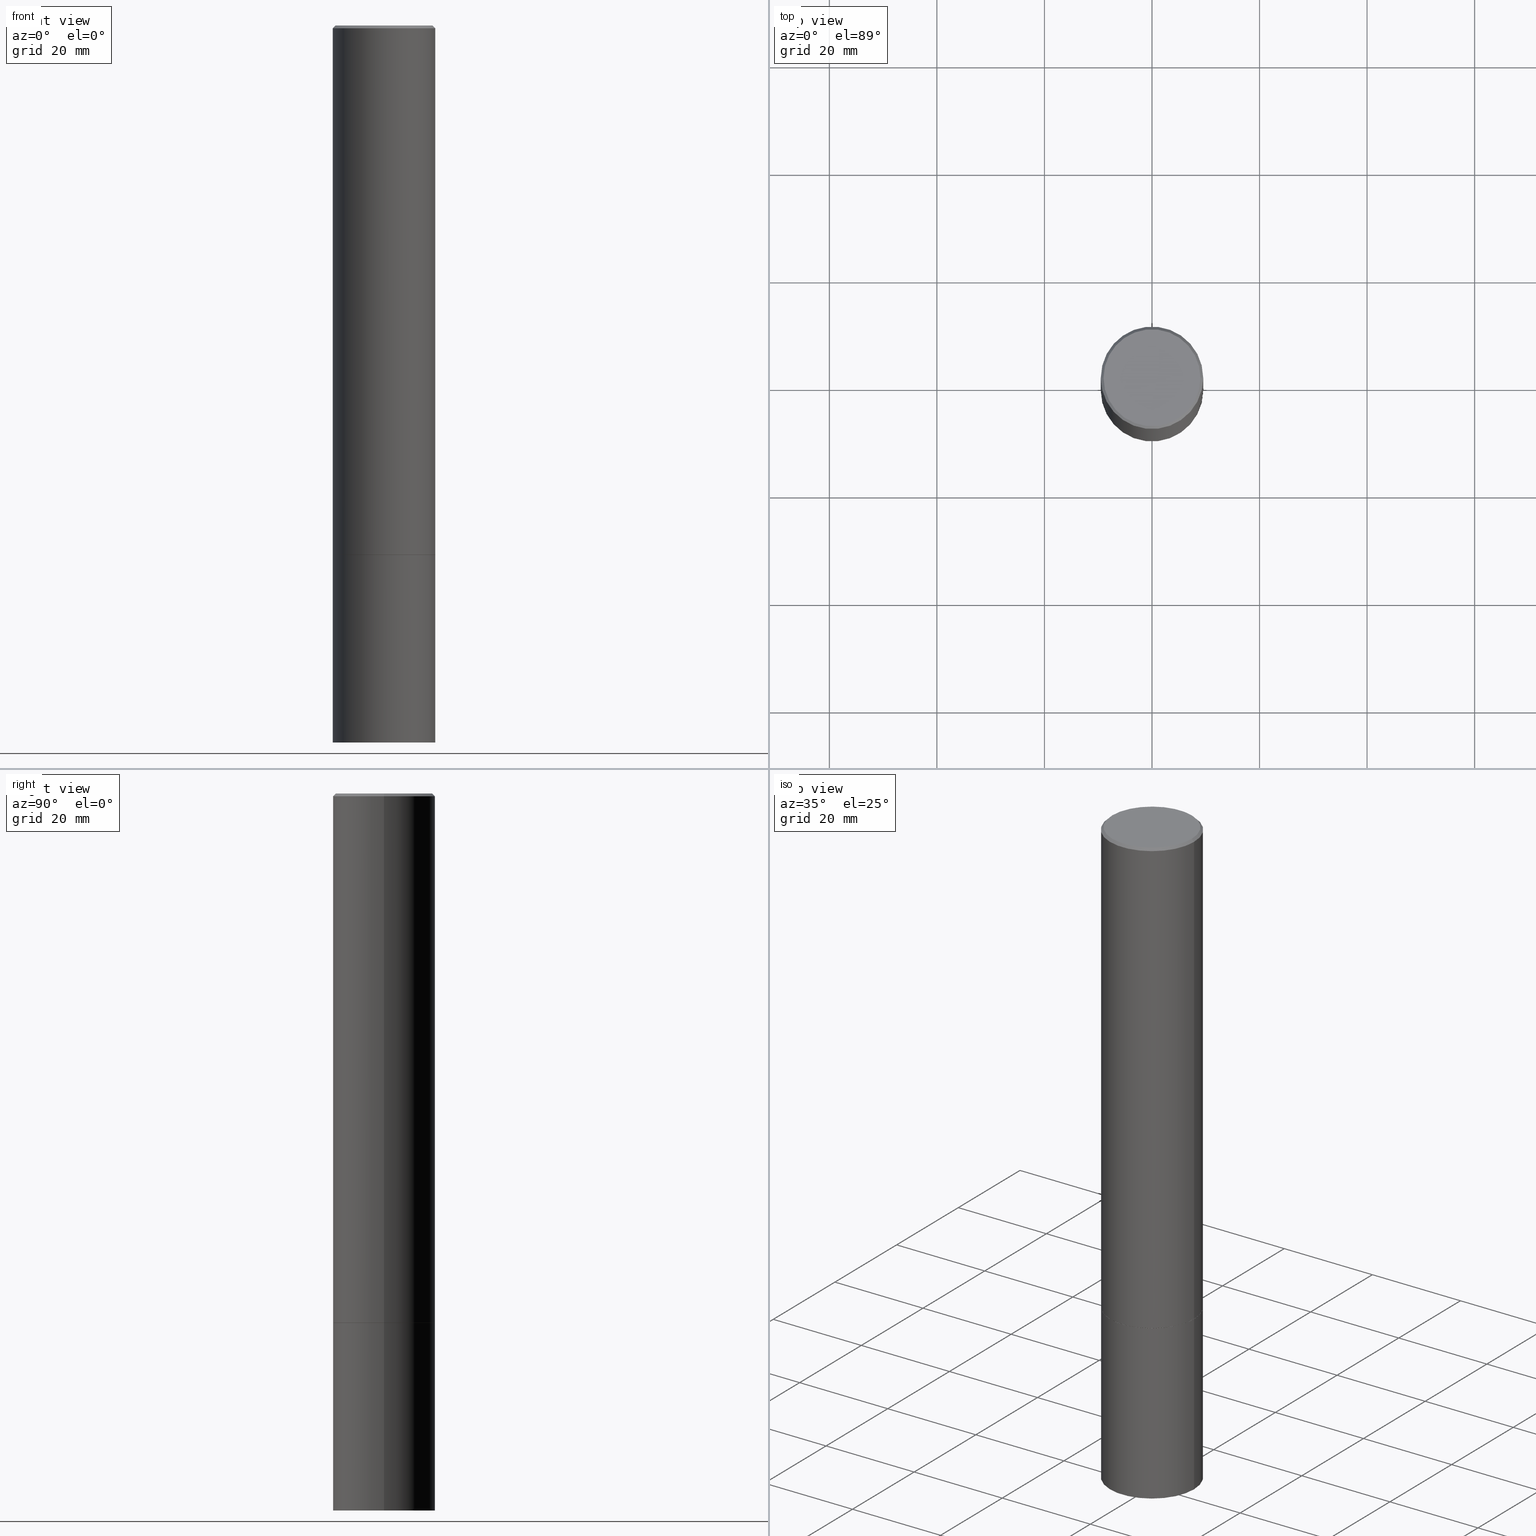
[diagram: canonical four-view strip — front | top / right | iso, engineering-drawing reading convention]
A machine part, canonical four-view strip (front | top / right | iso — engineering-drawing reading convention). The complete STEP part file that produces these views, byte-faithful:
ISO-10303-21;
HEADER;
FILE_DESCRIPTION (( 'STEP AP203' ),
    '1' );
FILE_NAME ('32267.STEP',
    '2024-02-27T14:54:22',
    ( '' ),
    ( '' ),
    'SwSTEP 2.0',
    'SolidWorks 2023',
    '' );
FILE_SCHEMA (( 'CONFIG_CONTROL_DESIGN' ));
ENDSEC;

DATA;
#1 = DIRECTION ( 'NONE',  ( 2.445468806185136597E-29, -3.491481338843145583E-15, -1.000000000000000000 ) ) ;
#2 = EDGE_LOOP ( 'NONE', ( #55, #361, #135, #255 ) ) ;
#3 = CIRCLE ( 'NONE', #90, 0.3549999999999994271 ) ;
#4 = CARTESIAN_POINT ( 'NONE',  ( 0.3750000000000000555, -1.614810119214954068E-14, -3.875000000000000000 ) ) ;
#5 = MANIFOLD_SOLID_BREP ( 'Body-Move/Copy2[2]', #274 ) ;
#6 = CARTESIAN_POINT ( 'NONE',  ( 2.478951750578620659E-15, 0.3549999999999994271, -1.235207362799214242E-15 ) ) ;
#7 = APPLICATION_PROTOCOL_DEFINITION ( 'international standard', 'config_control_design', 1994, #205 ) ;
#8 = EDGE_CURVE ( 'NONE', #312, #226, #341, .T. ) ;
#9 = DIRECTION ( 'NONE',  ( 1.000000000000000000, 0.000000000000000000, 0.000000000000000000 ) ) ;
#10 = PRODUCT_RELATED_PRODUCT_CATEGORY ( 'detail', '', ( #276 ) ) ;
#11 = DIRECTION ( 'NONE',  ( 1.000000000000000000, -6.982962677686266711E-15, 4.876231632511996030E-29 ) ) ;
#12 = AXIS2_PLACEMENT_3D ( 'NONE', #302, #332, #353 ) ;
#13 = LOCAL_TIME ( 9, 54, 22.00000000000000000, #14 ) ;
#14 = COORDINATED_UNIVERSAL_TIME_OFFSET ( 5, 0, .BEHIND. ) ;
#15 = ORIENTED_EDGE ( 'NONE', *, *, #292, .F. ) ;
#16 = CARTESIAN_POINT ( 'NONE',  ( 4.890937612370294178E-31, -6.982962677686321191E-17, -0.02000000000000008715 ) ) ;
#17 = CALENDAR_DATE ( 2024, 27, 2 ) ;
#18 = ORIENTED_EDGE ( 'NONE', *, *, #127, .T. ) ;
#19 = ORIENTED_EDGE ( 'NONE', *, *, #82, .F. ) ;
#20 = PRODUCT_DEFINITION ( 'UNKNOWN', '', #203, #154 ) ;
#21 = CARTESIAN_POINT ( 'NONE',  ( 9.476191623967405434E-29, -1.352949018801719066E-14, -3.875000000000000444 ) ) ;
#22 = ORIENTED_EDGE ( 'NONE', *, *, #282, .T. ) ;
#23 = CYLINDRICAL_SURFACE ( 'NONE', #72, 0.3749999999999996669 ) ;
#24 = EDGE_LOOP ( 'NONE', ( #248, #191 ) ) ;
#25 = CC_DESIGN_APPROVAL ( #142, ( #203 ) ) ;
#26 = LINE ( 'NONE', #80, #35 ) ;
#27 = VERTEX_POINT ( 'NONE', #68 ) ;
#28 = PLANE ( 'NONE',  #78 ) ;
#29 = CARTESIAN_POINT ( 'NONE',  ( 2.618611004132444680E-15, 0.3749999999999865108, -3.875000000000001332 ) ) ;
#30 = AXIS2_PLACEMENT_3D ( 'NONE', #40, #183, #360 ) ;
#31 = AXIS2_PLACEMENT_3D ( 'NONE', #267, #121, #11 ) ;
#32 = PLANE ( 'NONE',  #253 ) ;
#33 = EDGE_CURVE ( 'NONE', #48, #278, #315, .T. ) ;
#34 = FACE_OUTER_BOUND ( 'NONE', #333, .T. ) ;
#35 = VECTOR ( 'NONE', #318, 39.37007874015748143 ) ;
#36 = EDGE_CURVE ( 'NONE', #48, #129, #358, .T. ) ;
#37 = DIRECTION ( 'NONE',  ( -2.445468806185136597E-29, 3.491481338843145583E-15, 1.000000000000000000 ) ) ;
#38 = DIRECTION ( 'NONE',  ( 1.000000000000000000, -6.982962677686266711E-15, 4.876176775795935793E-29 ) ) ;
#39 = DATE_AND_TIME ( #66, #13 ) ;
#40 = CARTESIAN_POINT ( 'NONE',  ( 9.473746155161219831E-29, -1.352599870667834608E-14, -3.874000000000000110 ) ) ;
#41 = CIRCLE ( 'NONE', #144, 0.3739999999999999991 ) ;
#42 = ADVANCED_FACE ( 'NONE', ( #216 ), #264, .T. ) ;
#43 = EDGE_LOOP ( 'NONE', ( #105, #362, #67, #200 ) ) ;
#44 = APPROVAL_DATE_TIME ( #94, #70 ) ;
#45 = LINE ( 'NONE', #189, #147 ) ;
#46 = APPROVAL_STATUS ( 'not_yet_approved' ) ;
#47 = CARTESIAN_POINT ( 'NONE',  ( -0.3549999999999994271, 2.513866563967051519E-15, 8.537024980183364388E-18 ) ) ;
#48 = VERTEX_POINT ( 'NONE', #270 ) ;
#49 = ORIENTED_EDGE ( 'NONE', *, *, #36, .T. ) ;
#50 = CARTESIAN_POINT ( 'NONE',  ( 0.3750000000000000555, -2.094888803305886324E-14, -5.250000000000000000 ) ) ;
#51 = VERTEX_POINT ( 'NONE', #354 ) ;
#52 = FACE_OUTER_BOUND ( 'NONE', #2, .T. ) ;
#53 = DIRECTION ( 'NONE',  ( -2.445468806185136877E-29, 3.491481338843145188E-15, 1.000000000000000000 ) ) ;
#54 = ADVANCED_FACE ( 'NONE', ( #188 ), #304, .T. ) ;
#55 = ORIENTED_EDGE ( 'NONE', *, *, #149, .F. ) ;
#56 = DIRECTION ( 'NONE',  ( 1.000000000000000000, -6.982962677686265133E-15, 0.000000000000000000 ) ) ;
#57 = CARTESIAN_POINT ( 'NONE',  ( 2.618611004132478601E-15, 0.3749999999999817368, -5.250000000000000888 ) ) ;
#58 = CC_DESIGN_PERSON_AND_ORGANIZATION_ASSIGNMENT ( #213, #178, ( #20 ) ) ;
#59 = AXIS2_PLACEMENT_3D ( 'NONE', #141, #1, #222 ) ;
#60 = LOCAL_TIME ( 9, 54, 22.00000000000000000, #240 ) ;
#61 = CARTESIAN_POINT ( 'NONE',  ( 0.000000000000000000, 0.000000000000000000, 0.000000000000000000 ) ) ;
#62 = APPLICATION_PROTOCOL_DEFINITION ( 'international standard', 'config_control_design', 1994, #184 ) ;
#63 = EDGE_CURVE ( 'NONE', #51, #27, #118, .T. ) ;
#64 = AXIS2_PLACEMENT_3D ( 'NONE', #16, #277, #219 ) ;
#65 = LINE ( 'NONE', #71, #114 ) ;
#66 = CALENDAR_DATE ( 2024, 27, 2 ) ;
#67 = ORIENTED_EDGE ( 'NONE', *, *, #8, .F. ) ;
#68 = CARTESIAN_POINT ( 'NONE',  ( 0.3739999999999999991, -1.614111822947185466E-14, -3.875000000000000444 ) ) ;
#69 = EDGE_LOOP ( 'NONE', ( #134, #107, #113, #128 ) ) ;
#70 = APPROVAL ( #242, 'UNSPECIFIED' ) ;
#71 = CARTESIAN_POINT ( 'NONE',  ( -0.3749999999999993894, 2.548781377355482380E-15, -0.02000000000000008715 ) ) ;
#72 = AXIS2_PLACEMENT_3D ( 'NONE', #201, #227, #257 ) ;
#73 = CONICAL_SURFACE ( 'NONE', #300, 0.3739999999999999991, 0.7853981633972434429 ) ;
#74 = DIRECTION ( 'NONE',  ( 2.438088387897960049E-29, -3.491481338843145188E-15, -1.000000000000000000 ) ) ;
#75 = DIRECTION ( 'NONE',  ( 1.000000000000000000, -6.982962677686269077E-15, 0.000000000000000000 ) ) ;
#76 = ORIENTED_EDGE ( 'NONE', *, *, #220, .T. ) ;
#77 = CARTESIAN_POINT ( 'NONE',  ( 9.476191623967404313E-29, -1.352949018801718908E-14, -3.875000000000000000 ) ) ;
#78 = AXIS2_PLACEMENT_3D ( 'NONE', #29, #344, #137 ) ;
#79 = AXIS2_PLACEMENT_3D ( 'NONE', #351, #328, #234 ) ;
#80 = CARTESIAN_POINT ( 'NONE',  ( 0.3739999999999999991, -1.614111822947185466E-14, -3.875000000000000444 ) ) ;
#81 = DIRECTION ( 'NONE',  ( -2.445468806185136597E-29, 3.491481338843145583E-15, 1.000000000000000000 ) ) ;
#82 = EDGE_CURVE ( 'NONE', #109, #169, #65, .T. ) ;
#83 = CYLINDRICAL_SURFACE ( 'NONE', #288, 0.3750000000000000555 ) ;
#84 = AXIS2_PLACEMENT_3D ( 'NONE', #176, #233, #289 ) ;
#85 = AXIS2_PLACEMENT_3D ( 'NONE', #339, #313, #75 ) ;
#86 = CARTESIAN_POINT ( 'NONE',  ( 0.3749999999999996669, -2.618611004132347650E-15, 1.828566290923474241E-29 ) ) ;
#87 = DIRECTION ( 'NONE',  ( -2.445468806185136597E-29, 3.491481338843145583E-15, 1.000000000000000000 ) ) ;
#88 = COORDINATED_UNIVERSAL_TIME_OFFSET ( 5, 0, .BEHIND. ) ;
#89 = DIRECTION ( 'NONE',  ( 1.000000000000000000, -6.982962677686266711E-15, 4.876231632511996030E-29 ) ) ;
#90 = AXIS2_PLACEMENT_3D ( 'NONE', #206, #231, #89 ) ;
#91 = DATE_AND_TIME ( #215, #342 ) ;
#92 = CC_DESIGN_PERSON_AND_ORGANIZATION_ASSIGNMENT ( #301, #359, ( #316 ) ) ;
#93 = ADVANCED_BREP_SHAPE_REPRESENTATION ( '32267', ( #123, #5, #132 ), #348 ) ;
#94 = DATE_AND_TIME ( #296, #265 ) ;
#95 = EDGE_LOOP ( 'NONE', ( #272, #280, #283, #245 ) ) ;
#96 = APPROVAL_ROLE ( '' ) ;
#97 = ORIENTED_EDGE ( 'NONE', *, *, #149, .T. ) ;
#98 = VECTOR ( 'NONE', #290, 39.37007874015748143 ) ;
#99 = CALENDAR_DATE ( 2024, 27, 2 ) ;
#100 = EDGE_CURVE ( 'NONE', #226, #169, #45, .T. ) ;
#101 = CARTESIAN_POINT ( 'NONE',  ( -0.3750000000000000555, 2.664535259100376091E-15, -1.844600658845589598E-29 ) ) ;
#102 = PERSON_AND_ORGANIZATION ( #311, #229 ) ;
#103 = DIRECTION ( 'NONE',  ( -2.445468806185136877E-29, 3.491481338843145188E-15, 1.000000000000000000 ) ) ;
#104 = ORIENTED_EDGE ( 'NONE', *, *, #232, .F. ) ;
#105 = ORIENTED_EDGE ( 'NONE', *, *, #232, .T. ) ;
#106 = CONICAL_SURFACE ( 'NONE', #321, 0.3739999999999999991, 0.7853981633972434429 ) ;
#107 = ORIENTED_EDGE ( 'NONE', *, *, #63, .T. ) ;
#108 = DIRECTION ( 'NONE',  ( 1.000000000000000000, -6.982962677686261189E-15, 0.000000000000000000 ) ) ;
#109 = VERTEX_POINT ( 'NONE', #47 ) ;
#110 = ADVANCED_FACE ( 'NONE', ( #297 ), #179, .F. ) ;
#111 = DIRECTION ( 'NONE',  ( 0.7071067811865456854, -7.319954787623249734E-15, -0.7071067811865493491 ) ) ;
#112 = DIRECTION ( 'NONE',  ( -2.445468806185136597E-29, 3.491481338843145583E-15, 1.000000000000000000 ) ) ;
#113 = ORIENTED_EDGE ( 'NONE', *, *, #130, .T. ) ;
#114 = VECTOR ( 'NONE', #211, 39.37007874015748143 ) ;
#115 = DIRECTION ( 'NONE',  ( 2.438088387897960049E-29, -3.491481338843145188E-15, -1.000000000000000000 ) ) ;
#116 =( NAMED_UNIT ( * ) SI_UNIT ( $, .STERADIAN. ) SOLID_ANGLE_UNIT ( ) );
#117 = PERSON_AND_ORGANIZATION ( #311, #229 ) ;
#118 = CIRCLE ( 'NONE', #298, 0.3739999999999999991 ) ;
#119 = CC_DESIGN_APPROVAL ( #70, ( #316 ) ) ;
#120 = CC_DESIGN_PERSON_AND_ORGANIZATION_ASSIGNMENT ( #182, #357, ( #203 ) ) ;
#121 = DIRECTION ( 'NONE',  ( -2.445468806185136597E-29, 3.491481338843145583E-15, 1.000000000000000000 ) ) ;
#122 =( NAMED_UNIT ( * ) PLANE_ANGLE_UNIT ( ) SI_UNIT ( $, .RADIAN. ) );
#123 = MANIFOLD_SOLID_BREP ( 'Body-Move/Copy2[1]', #180 ) ;
#124 = VECTOR ( 'NONE', #103, 39.37007874015748143 ) ;
#125 = APPROVAL_DATE_TIME ( #133, #142 ) ;
#126 = APPROVAL_PERSON_ORGANIZATION ( #117, #164, #347 ) ;
#127 = EDGE_CURVE ( 'NONE', #278, #140, #170, .T. ) ;
#128 = ORIENTED_EDGE ( 'NONE', *, *, #197, .F. ) ;
#129 = VERTEX_POINT ( 'NONE', #252 ) ;
#130 = EDGE_CURVE ( 'NONE', #27, #312, #26, .T. ) ;
#131 = ORIENTED_EDGE ( 'NONE', *, *, #192, .F. ) ;
#132 = AXIS2_PLACEMENT_3D ( 'NONE', #263, #236, #9 ) ;
#133 = DATE_AND_TIME ( #99, #223 ) ;
#134 = ORIENTED_EDGE ( 'NONE', *, *, #261, .F. ) ;
#135 = ORIENTED_EDGE ( 'NONE', *, *, #82, .T. ) ;
#136 = ORIENTED_EDGE ( 'NONE', *, *, #220, .F. ) ;
#137 = DIRECTION ( 'NONE',  ( -1.000000000000000000, 6.982962677686265922E-15, -4.876176775795935793E-29 ) ) ;
#138 = CONICAL_SURFACE ( 'NONE', #59, 0.3749999999999993894, 0.7853981633974457255 ) ;
#139 = CARTESIAN_POINT ( 'NONE',  ( 9.476191623967404313E-29, -1.352949018801718908E-14, -3.875000000000000000 ) ) ;
#140 = VERTEX_POINT ( 'NONE', #4 ) ;
#141 = CARTESIAN_POINT ( 'NONE',  ( 4.890937612370294178E-31, -6.982962677686321191E-17, -0.02000000000000008715 ) ) ;
#142 = APPROVAL ( #46, 'UNSPECIFIED' ) ;
#143 = DIRECTION ( 'NONE',  ( -2.438088387897960049E-29, 3.491481338843145188E-15, 1.000000000000000000 ) ) ;
#144 = AXIS2_PLACEMENT_3D ( 'NONE', #202, #112, #193 ) ;
#145 = DIRECTION ( 'NONE',  ( 1.000000000000000000, -6.982962677686265922E-15, 4.876176775795935793E-29 ) ) ;
#146 = CYLINDRICAL_SURFACE ( 'NONE', #336, 0.3749999999999996669 ) ;
#147 = VECTOR ( 'NONE', #306, 39.37007874015748143 ) ;
#148 =( LENGTH_UNIT ( ) NAMED_UNIT ( * ) SI_UNIT ( $, .METRE. ) );
#149 = EDGE_CURVE ( 'NONE', #243, #163, #166, .T. ) ;
#150 = APPROVAL_STATUS ( 'not_yet_approved' ) ;
#151 = AXIS2_PLACEMENT_3D ( 'NONE', #195, #81, #108 ) ;
#152 = CC_DESIGN_SECURITY_CLASSIFICATION ( #316, ( #203 ) ) ;
#153 = ORIENTED_EDGE ( 'NONE', *, *, #192, .T. ) ;
#154 = DESIGN_CONTEXT ( 'detailed design', #205, 'design' ) ;
#155 = EDGE_LOOP ( 'NONE', ( #153, #49, #136, #258 ) ) ;
#156 = EDGE_LOOP ( 'NONE', ( #76, #159 ) ) ;
#157 = ADVANCED_FACE ( 'NONE', ( #284 ), #28, .F. ) ;
#158 = PERSON_AND_ORGANIZATION ( #311, #229 ) ;
#159 = ORIENTED_EDGE ( 'NONE', *, *, #235, .T. ) ;
#160 = VECTOR ( 'NONE', #337, 39.37007874015748143 ) ;
#161 = DATE_AND_TIME ( #17, #60 ) ;
#162 = ORIENTED_EDGE ( 'NONE', *, *, #197, .T. ) ;
#163 = VERTEX_POINT ( 'NONE', #343 ) ;
#164 = APPROVAL ( #150, 'UNSPECIFIED' ) ;
#165 = CARTESIAN_POINT ( 'NONE',  ( 0.3749999999999993894, -2.642516375941183690E-15, -0.02000000000000008715 ) ) ;
#166 = LINE ( 'NONE', #165, #326 ) ;
#167 = CARTESIAN_POINT ( 'NONE',  ( 0.3549999999999994271, -2.538996582575037104E-15, 8.537024980218368550E-18 ) ) ;
#168 = ADVANCED_FACE ( 'NONE', ( #287 ), #23, .T. ) ;
#169 = VERTEX_POINT ( 'NONE', #340 ) ;
#170 = LINE ( 'NONE', #365, #199 ) ;
#171 = CARTESIAN_POINT ( 'NONE',  ( -0.3739999999999999991, -1.087206035627441518E-14, -3.875000000000000444 ) ) ;
#172 = CIRCLE ( 'NONE', #79, 0.3749999999999993894 ) ;
#173 =( CONVERSION_BASED_UNIT ( 'INCH', #266 ) LENGTH_UNIT ( ) NAMED_UNIT ( #291 ) );
#174 = ADVANCED_FACE ( 'NONE', ( #52 ), #138, .T. ) ;
#175 = APPROVAL_PERSON_ORGANIZATION ( #102, #70, #352 ) ;
#176 = CARTESIAN_POINT ( 'NONE',  ( 4.890937612370294178E-31, -6.982962677686321191E-17, -0.02000000000000008715 ) ) ;
#177 = CARTESIAN_POINT ( 'NONE',  ( 0.000000000000000000, 0.000000000000000000, 0.000000000000000000 ) ) ;
#178 = PERSON_AND_ORGANIZATION_ROLE ( 'creator' ) ;
#179 = PLANE ( 'NONE',  #238 ) ;
#180 = CLOSED_SHELL ( 'NONE', ( #286, #247, #157, #54 ) ) ;
#181 = APPROVAL_PERSON_ORGANIZATION ( #158, #142, #96 ) ;
#182 = PERSON_AND_ORGANIZATION ( #311, #229 ) ;
#183 = DIRECTION ( 'NONE',  ( -2.445468806185136597E-29, 3.491481338843145583E-15, 1.000000000000000000 ) ) ;
#184 = APPLICATION_CONTEXT ( 'configuration controlled 3d designs of mechanical parts and assemblies' ) ;
#185 = DATE_TIME_ROLE ( 'classification_date' ) ;
#186 = ADVANCED_FACE ( 'NONE', ( #259 ), #106, .T. ) ;
#187 = EDGE_LOOP ( 'NONE', ( #196, #97, #22, #19 ) ) ;
#188 = FACE_OUTER_BOUND ( 'NONE', #194, .T. ) ;
#189 = CARTESIAN_POINT ( 'NONE',  ( -0.3749999999999996669, 2.664535259100373330E-15, -1.844600658845587917E-29 ) ) ;
#190 = CIRCLE ( 'NONE', #31, 0.3549999999999994271 ) ;
#191 = ORIENTED_EDGE ( 'NONE', *, *, #356, .T. ) ;
#192 = EDGE_CURVE ( 'NONE', #278, #48, #268, .T. ) ;
#193 = DIRECTION ( 'NONE',  ( 1.000000000000000000, -6.982962677686265133E-15, 0.000000000000000000 ) ) ;
#194 = EDGE_LOOP ( 'NONE', ( #249, #221, #18, #364 ) ) ;
#195 = CARTESIAN_POINT ( 'NONE',  ( 1.283871123247196713E-28, -1.833027702892651322E-14, -5.250000000000000000 ) ) ;
#196 = ORIENTED_EDGE ( 'NONE', *, *, #356, .F. ) ;
#197 = EDGE_CURVE ( 'NONE', #226, #312, #346, .T. ) ;
#198 = DIRECTION ( 'NONE',  ( 1.000000000000000000, -6.982962677686266711E-15, 0.000000000000000000 ) ) ;
#199 = VECTOR ( 'NONE', #53, 39.37007874015748143 ) ;
#200 = ORIENTED_EDGE ( 'NONE', *, *, #130, .F. ) ;
#201 = CARTESIAN_POINT ( 'NONE',  ( 0.000000000000000000, 0.000000000000000000, 0.000000000000000000 ) ) ;
#202 = CARTESIAN_POINT ( 'NONE',  ( 9.476191623967405434E-29, -1.352949018801719066E-14, -3.875000000000000444 ) ) ;
#203 = PRODUCT_DEFINITION_FORMATION_WITH_SPECIFIED_SOURCE ( 'ANY', '', #276, .NOT_KNOWN. ) ;
#204 = DIRECTION ( 'NONE',  ( 1.000000000000000000, -6.982962677686265133E-15, 0.000000000000000000 ) ) ;
#205 = APPLICATION_CONTEXT ( 'configuration controlled 3d designs of mechanical parts and assemblies' ) ;
#206 = CARTESIAN_POINT ( 'NONE',  ( -2.087702828670439639E-46, 2.980686340760894400E-32, 8.537024980200822558E-18 ) ) ;
#207 = CC_DESIGN_PERSON_AND_ORGANIZATION_ASSIGNMENT ( #293, #350, ( #276 ) ) ;
#208 = LINE ( 'NONE', #86, #98 ) ;
#209 = APPROVAL_DATE_TIME ( #91, #164 ) ;
#210 = PERSON_AND_ORGANIZATION ( #311, #229 ) ;
#211 = DIRECTION ( 'NONE',  ( -0.7071067811865456854, 2.468850131082237733E-15, -0.7071067811865493491 ) ) ;
#212 = CC_DESIGN_APPROVAL ( #164, ( #20 ) ) ;
#213 = PERSON_AND_ORGANIZATION ( #311, #229 ) ;
#214 = CARTESIAN_POINT ( 'NONE',  ( 1.283871123247196713E-28, -1.833027702892651322E-14, -5.250000000000000000 ) ) ;
#215 = CALENDAR_DATE ( 2024, 27, 2 ) ;
#216 = FACE_OUTER_BOUND ( 'NONE', #187, .T. ) ;
#217 = PRODUCT_DEFINITION_SHAPE ( 'NONE', 'NONE',  #20 ) ;
#218 = COORDINATED_UNIVERSAL_TIME_OFFSET ( 5, 0, .BEHIND. ) ;
#219 = DIRECTION ( 'NONE',  ( -1.000000000000000000, 6.982962677686266711E-15, 0.000000000000000000 ) ) ;
#220 = EDGE_CURVE ( 'NONE', #140, #129, #327, .T. ) ;
#221 = ORIENTED_EDGE ( 'NONE', *, *, #33, .T. ) ;
#222 = DIRECTION ( 'NONE',  ( -1.000000000000000000, 6.982962677686266711E-15, 0.000000000000000000 ) ) ;
#223 = LOCAL_TIME ( 9, 54, 22.00000000000000000, #303 ) ;
#224 = EDGE_LOOP ( 'NONE', ( #104, #250 ) ) ;
#225 = CARTESIAN_POINT ( 'NONE',  ( 9.476191623967405434E-29, -1.352949018801719066E-14, -3.875000000000000444 ) ) ;
#226 = VERTEX_POINT ( 'NONE', #317 ) ;
#227 = DIRECTION ( 'NONE',  ( -2.445468806185136597E-29, 3.491481338843145583E-15, 1.000000000000000000 ) ) ;
#228 = PLANE ( 'NONE',  #307 ) ;
#229 = ORGANIZATION ( 'UNSPECIFIED', 'UNSPECIFIED', '' ) ;
#230 = DIRECTION ( 'NONE',  ( -1.000000000000000000, 6.982962677686265922E-15, -4.876176775795935793E-29 ) ) ;
#231 = DIRECTION ( 'NONE',  ( -2.445468806185136597E-29, 3.491481338843145583E-15, 1.000000000000000000 ) ) ;
#232 = EDGE_CURVE ( 'NONE', #27, #51, #41, .T. ) ;
#233 = DIRECTION ( 'NONE',  ( -2.445468806185136597E-29, 3.491481338843145583E-15, 1.000000000000000000 ) ) ;
#234 = DIRECTION ( 'NONE',  ( 1.000000000000000000, -6.982962677686266711E-15, 0.000000000000000000 ) ) ;
#235 = EDGE_CURVE ( 'NONE', #129, #140, #331, .T. ) ;
#236 = DIRECTION ( 'NONE',  ( 0.000000000000000000, 0.000000000000000000, 1.000000000000000000 ) ) ;
#237 = MECHANICAL_CONTEXT ( 'NONE', #184, 'mechanical' ) ;
#238 = AXIS2_PLACEMENT_3D ( 'NONE', #330, #143, #145 ) ;
#239 = AXIS2_PLACEMENT_3D ( 'NONE', #139, #254, #285 ) ;
#240 = COORDINATED_UNIVERSAL_TIME_OFFSET ( 5, 0, .BEHIND. ) ;
#241 = DIRECTION ( 'NONE',  ( 1.000000000000000000, -6.982962677686265133E-15, 0.000000000000000000 ) ) ;
#242 = APPROVAL_STATUS ( 'not_yet_approved' ) ;
#243 = VERTEX_POINT ( 'NONE', #167 ) ;
#244 = DATE_TIME_ROLE ( 'creation_date' ) ;
#245 = ORIENTED_EDGE ( 'NONE', *, *, #319, .F. ) ;
#246 = PERSON_AND_ORGANIZATION_ROLE ( 'design_supplier' ) ;
#247 = ADVANCED_FACE ( 'NONE', ( #279 ), #228, .T. ) ;
#248 = ORIENTED_EDGE ( 'NONE', *, *, #295, .T. ) ;
#249 = ORIENTED_EDGE ( 'NONE', *, *, #36, .F. ) ;
#250 = ORIENTED_EDGE ( 'NONE', *, *, #63, .F. ) ;
#251 = CIRCLE ( 'NONE', #84, 0.3749999999999993894 ) ;
#252 = CARTESIAN_POINT ( 'NONE',  ( -0.3750000000000000555, -1.326534834937147625E-14, -3.875000000000000000 ) ) ;
#253 = AXIS2_PLACEMENT_3D ( 'NONE', #6, #74, #310 ) ;
#254 = DIRECTION ( 'NONE',  ( -2.445468806185136597E-29, 3.491481338843145583E-15, 1.000000000000000000 ) ) ;
#255 = ORIENTED_EDGE ( 'NONE', *, *, #292, .T. ) ;
#256 = CC_DESIGN_PERSON_AND_ORGANIZATION_ASSIGNMENT ( #210, #246, ( #203 ) ) ;
#257 = DIRECTION ( 'NONE',  ( 1.000000000000000000, -6.982962677686266711E-15, 4.876176775795935793E-29 ) ) ;
#258 = ORIENTED_EDGE ( 'NONE', *, *, #127, .F. ) ;
#259 = FACE_OUTER_BOUND ( 'NONE', #69, .T. ) ;
#260 = AXIS2_PLACEMENT_3D ( 'NONE', #77, #366, #198 ) ;
#261 = EDGE_CURVE ( 'NONE', #51, #226, #320, .T. ) ;
#262 = FACE_OUTER_BOUND ( 'NONE', #24, .T. ) ;
#263 = CARTESIAN_POINT ( 'NONE',  ( 0.000000000000000000, 0.000000000000000000, 0.000000000000000000 ) ) ;
#264 = CONICAL_SURFACE ( 'NONE', #64, 0.3749999999999993894, 0.7853981633974457255 ) ;
#265 = LOCAL_TIME ( 9, 54, 22.00000000000000000, #218 ) ;
#266 = LENGTH_MEASURE_WITH_UNIT ( LENGTH_MEASURE( 0.02539999999999999897 ), #148 );
#267 = CARTESIAN_POINT ( 'NONE',  ( -2.087702828670439639E-46, 2.980686340760894400E-32, 8.537024980200822558E-18 ) ) ;
#268 = CIRCLE ( 'NONE', #151, 0.3750000000000000555 ) ;
#269 = CC_DESIGN_DATE_AND_TIME_ASSIGNMENT ( #161, #185, ( #316 ) ) ;
#270 = CARTESIAN_POINT ( 'NONE',  ( -0.3750000000000000555, -1.326534834937147625E-14, -5.250000000000000000 ) ) ;
#271 = DIRECTION ( 'NONE',  ( -2.445468806185136597E-29, 3.491481338843145583E-15, 1.000000000000000000 ) ) ;
#272 = ORIENTED_EDGE ( 'NONE', *, *, #8, .T. ) ;
#273 = ADVANCED_FACE ( 'NONE', ( #262 ), #32, .F. ) ;
#274 = CLOSED_SHELL ( 'NONE', ( #305, #168, #42, #174, #323, #186, #110, #273 ) ) ;
#275 = SHAPE_DEFINITION_REPRESENTATION ( #217, #93 ) ;
#276 = PRODUCT ( '32267', '32267', '', ( #237 ) ) ;
#277 = DIRECTION ( 'NONE',  ( 2.445468806185136597E-29, -3.491481338843145583E-15, -1.000000000000000000 ) ) ;
#278 = VERTEX_POINT ( 'NONE', #50 ) ;
#279 = FACE_OUTER_BOUND ( 'NONE', #338, .T. ) ;
#280 = ORIENTED_EDGE ( 'NONE', *, *, #100, .T. ) ;
#281 = DIRECTION ( 'NONE',  ( -2.445468806185136597E-29, 3.491481338843145583E-15, 1.000000000000000000 ) ) ;
#282 = EDGE_CURVE ( 'NONE', #163, #169, #172, .T. ) ;
#283 = ORIENTED_EDGE ( 'NONE', *, *, #282, .F. ) ;
#284 = FACE_OUTER_BOUND ( 'NONE', #156, .T. ) ;
#285 = DIRECTION ( 'NONE',  ( 1.000000000000000000, -6.982962677686266711E-15, 0.000000000000000000 ) ) ;
#286 = ADVANCED_FACE ( 'NONE', ( #322 ), #83, .T. ) ;
#287 = FACE_OUTER_BOUND ( 'NONE', #95, .T. ) ;
#288 = AXIS2_PLACEMENT_3D ( 'NONE', #177, #345, #294 ) ;
#289 = DIRECTION ( 'NONE',  ( 1.000000000000000000, -6.982962677686266711E-15, 0.000000000000000000 ) ) ;
#290 = DIRECTION ( 'NONE',  ( -2.445468806185136877E-29, 3.491481338843145188E-15, 1.000000000000000000 ) ) ;
#291 = DIMENSIONAL_EXPONENTS ( 1.000000000000000000, 0.000000000000000000, 0.000000000000000000, 0.000000000000000000, 0.000000000000000000, 0.000000000000000000, 0.000000000000000000 ) ;
#292 = EDGE_CURVE ( 'NONE', #169, #163, #251, .T. ) ;
#293 = PERSON_AND_ORGANIZATION ( #311, #229 ) ;
#294 = DIRECTION ( 'NONE',  ( 1.000000000000000000, -6.982962677686265922E-15, 4.876176775795935793E-29 ) ) ;
#295 = EDGE_CURVE ( 'NONE', #109, #243, #3, .T. ) ;
#296 = CALENDAR_DATE ( 2024, 27, 2 ) ;
#297 = FACE_OUTER_BOUND ( 'NONE', #224, .T. ) ;
#298 = AXIS2_PLACEMENT_3D ( 'NONE', #21, #329, #241 ) ;
#299 = UNCERTAINTY_MEASURE_WITH_UNIT (LENGTH_MEASURE( 1.000000000000000082E-05 ), #173, 'distance_accuracy_value', 'NONE');
#300 = AXIS2_PLACEMENT_3D ( 'NONE', #324, #87, #204 ) ;
#301 = PERSON_AND_ORGANIZATION ( #311, #229 ) ;
#302 = CARTESIAN_POINT ( 'NONE',  ( 0.000000000000000000, 0.000000000000000000, 0.000000000000000000 ) ) ;
#303 = COORDINATED_UNIVERSAL_TIME_OFFSET ( 5, 0, .BEHIND. ) ;
#304 = CYLINDRICAL_SURFACE ( 'NONE', #12, 0.3750000000000000555 ) ;
#305 = ADVANCED_FACE ( 'NONE', ( #349 ), #73, .T. ) ;
#306 = DIRECTION ( 'NONE',  ( -2.445468806185136877E-29, 3.491481338843145188E-15, 1.000000000000000000 ) ) ;
#307 = AXIS2_PLACEMENT_3D ( 'NONE', #57, #115, #230 ) ;
#308 = ORIENTED_EDGE ( 'NONE', *, *, #100, .F. ) ;
#309 = ORIENTED_EDGE ( 'NONE', *, *, #319, .T. ) ;
#310 = DIRECTION ( 'NONE',  ( -1.000000000000000000, 6.982962677686265922E-15, -4.876176775795935793E-29 ) ) ;
#311 = PERSON ( 'UNSPECIFIED', 'UNSPECIFIED', 'UNSPECIFIED', ('UNSPECIFIED'), ('UNSPECIFIED'), ('UNSPECIFIED') ) ;
#312 = VERTEX_POINT ( 'NONE', #325 ) ;
#313 = DIRECTION ( 'NONE',  ( -2.445468806185136597E-29, 3.491481338843145583E-15, 1.000000000000000000 ) ) ;
#314 = ORIENTED_EDGE ( 'NONE', *, *, #33, .F. ) ;
#315 = CIRCLE ( 'NONE', #355, 0.3750000000000000555 ) ;
#316 = SECURITY_CLASSIFICATION ( '', '', #334 ) ;
#317 = CARTESIAN_POINT ( 'NONE',  ( -0.3749999999999999445, -4.133378907627225046E-15, -3.874000000000000110 ) ) ;
#318 = DIRECTION ( 'NONE',  ( 0.7071067811864026886, -2.468850131080739687E-15, 0.7071067811866923458 ) ) ;
#319 = EDGE_CURVE ( 'NONE', #312, #163, #208, .T. ) ;
#320 = LINE ( 'NONE', #171, #160 ) ;
#321 = AXIS2_PLACEMENT_3D ( 'NONE', #225, #281, #56 ) ;
#322 = FACE_OUTER_BOUND ( 'NONE', #155, .T. ) ;
#323 = ADVANCED_FACE ( 'NONE', ( #34 ), #146, .T. ) ;
#324 = CARTESIAN_POINT ( 'NONE',  ( 9.476191623967405434E-29, -1.352949018801719066E-14, -3.875000000000000444 ) ) ;
#325 = CARTESIAN_POINT ( 'NONE',  ( 0.3749999999999999445, -1.614460971081069609E-14, -3.874000000000000110 ) ) ;
#326 = VECTOR ( 'NONE', #111, 39.37007874015748143 ) ;
#327 = CIRCLE ( 'NONE', #260, 0.3750000000000000555 ) ;
#328 = DIRECTION ( 'NONE',  ( -2.445468806185136597E-29, 3.491481338843145583E-15, 1.000000000000000000 ) ) ;
#329 = DIRECTION ( 'NONE',  ( -2.445468806185136597E-29, 3.491481338843145583E-15, 1.000000000000000000 ) ) ;
#330 = CARTESIAN_POINT ( 'NONE',  ( 9.476191623967405434E-29, -1.352949018801719066E-14, -3.875000000000000444 ) ) ;
#331 = CIRCLE ( 'NONE', #239, 0.3750000000000000555 ) ;
#332 = DIRECTION ( 'NONE',  ( -2.445468806185136597E-29, 3.491481338843145583E-15, 1.000000000000000000 ) ) ;
#333 = EDGE_LOOP ( 'NONE', ( #308, #162, #309, #15 ) ) ;
#334 = SECURITY_CLASSIFICATION_LEVEL ( 'unclassified' ) ;
#335 = DIRECTION ( 'NONE',  ( 1.000000000000000000, -6.982962677686261189E-15, 0.000000000000000000 ) ) ;
#336 = AXIS2_PLACEMENT_3D ( 'NONE', #61, #37, #38 ) ;
#337 = DIRECTION ( 'NONE',  ( -0.7071067811864026886, 7.493145998869830357E-15, 0.7071067811866923458 ) ) ;
#338 = EDGE_LOOP ( 'NONE', ( #131, #314 ) ) ;
#339 = CARTESIAN_POINT ( 'NONE',  ( 9.473746155161219831E-29, -1.352599870667834608E-14, -3.874000000000000110 ) ) ;
#340 = CARTESIAN_POINT ( 'NONE',  ( -0.3749999999999993894, 2.548781377355482380E-15, -0.02000000000000008715 ) ) ;
#341 = CIRCLE ( 'NONE', #30, 0.3749999999999999445 ) ;
#342 = LOCAL_TIME ( 9, 54, 22.00000000000000000, #88 ) ;
#343 = CARTESIAN_POINT ( 'NONE',  ( 0.3749999999999993894, -2.642516375941183690E-15, -0.02000000000000008715 ) ) ;
#344 = DIRECTION ( 'NONE',  ( 2.438088387897960049E-29, -3.491481338843145188E-15, -1.000000000000000000 ) ) ;
#345 = DIRECTION ( 'NONE',  ( -2.445468806185136597E-29, 3.491481338843145583E-15, 1.000000000000000000 ) ) ;
#346 = CIRCLE ( 'NONE', #85, 0.3749999999999999445 ) ;
#347 = APPROVAL_ROLE ( '' ) ;
#348 =( GEOMETRIC_REPRESENTATION_CONTEXT ( 3 ) GLOBAL_UNCERTAINTY_ASSIGNED_CONTEXT ( ( #299 ) ) GLOBAL_UNIT_ASSIGNED_CONTEXT ( ( #173, #122, #116 ) ) REPRESENTATION_CONTEXT ( 'NONE', 'WORKASPACE' ) );
#349 = FACE_OUTER_BOUND ( 'NONE', #43, .T. ) ;
#350 = PERSON_AND_ORGANIZATION_ROLE ( 'design_owner' ) ;
#351 = CARTESIAN_POINT ( 'NONE',  ( 4.890937612370294178E-31, -6.982962677686321191E-17, -0.02000000000000008715 ) ) ;
#352 = APPROVAL_ROLE ( '' ) ;
#353 = DIRECTION ( 'NONE',  ( 1.000000000000000000, -6.982962677686265922E-15, 4.876176775795935793E-29 ) ) ;
#354 = CARTESIAN_POINT ( 'NONE',  ( -0.3739999999999999991, -1.086676190192619278E-14, -3.875000000000000444 ) ) ;
#355 = AXIS2_PLACEMENT_3D ( 'NONE', #214, #271, #335 ) ;
#356 = EDGE_CURVE ( 'NONE', #243, #109, #190, .T. ) ;
#357 = PERSON_AND_ORGANIZATION_ROLE ( 'creator' ) ;
#358 = LINE ( 'NONE', #101, #124 ) ;
#359 = PERSON_AND_ORGANIZATION_ROLE ( 'classification_officer' ) ;
#360 = DIRECTION ( 'NONE',  ( 1.000000000000000000, -6.982962677686269077E-15, 0.000000000000000000 ) ) ;
#361 = ORIENTED_EDGE ( 'NONE', *, *, #295, .F. ) ;
#362 = ORIENTED_EDGE ( 'NONE', *, *, #261, .T. ) ;
#363 = CC_DESIGN_DATE_AND_TIME_ASSIGNMENT ( #39, #244, ( #20 ) ) ;
#364 = ORIENTED_EDGE ( 'NONE', *, *, #235, .F. ) ;
#365 = CARTESIAN_POINT ( 'NONE',  ( 0.3750000000000000555, -2.618611004132350016E-15, 1.828566290923476203E-29 ) ) ;
#366 = DIRECTION ( 'NONE',  ( -2.445468806185136597E-29, 3.491481338843145583E-15, 1.000000000000000000 ) ) ;
ENDSEC;
END-ISO-10303-21;
